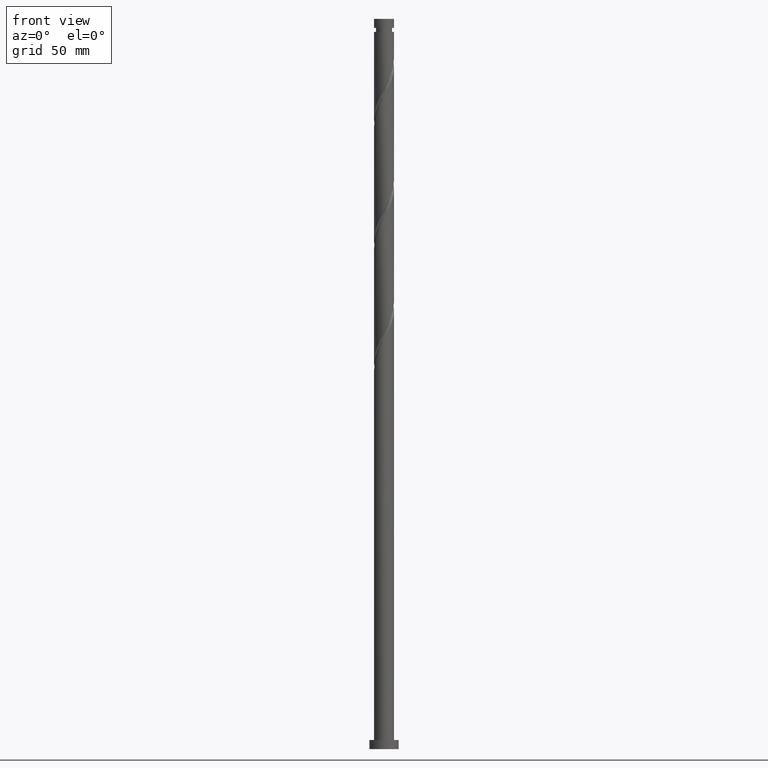
[diagram: clean part render]
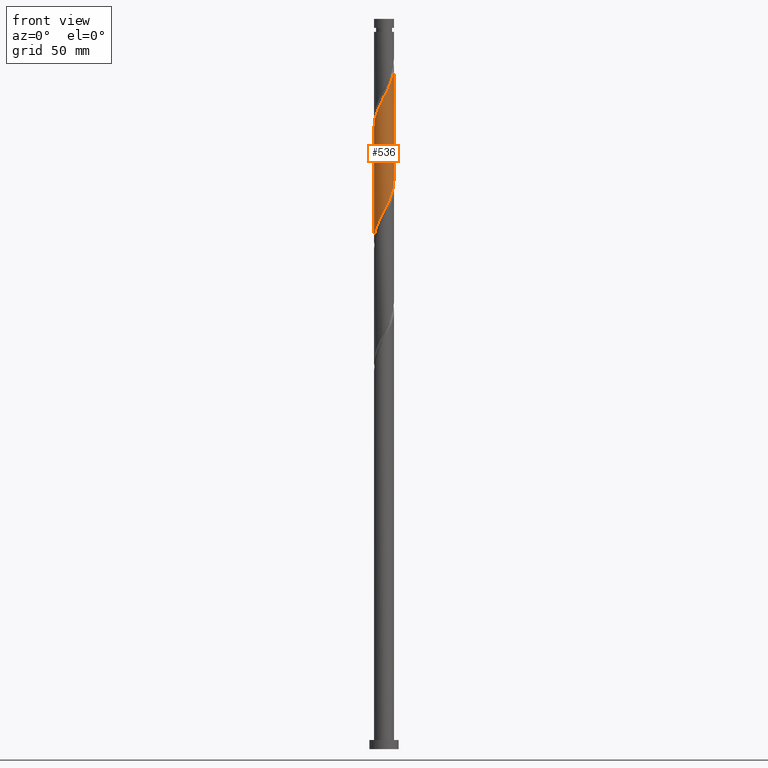
[diagram: same view with one face highlighted and labeled with its STEP entity id]
A machine part, front view. The second image highlights one B-rep face of the part: STEP entity #536.
In plain terms, the highlighted cylindrical surface (edge-blend (fillet) strip) has radius 5.5 mm, axis along (-0, -0, -1).
Its self-contained STEP definition (entity closure, byte-faithful):
#7 = CARTESIAN_POINT ( 'NONE',  ( -0.6281243161452685353, -5.494508947727569037, 356.1803760664136576 ) ) ;
#29 = CARTESIAN_POINT ( 'NONE',  ( 0.6281243161452659818, -5.494508947727561932, 296.1803760664137712 ) ) ;
#33 = DIRECTION ( 'NONE',  ( -1.000000000000000000, 0.000000000000000000, 0.000000000000000000 ) ) ;
#41 = CARTESIAN_POINT ( 'NONE',  ( -3.737754574404964725, -4.075948904820328345, 349.5137093997470856 ) ) ;
#51 = CARTESIAN_POINT ( 'NONE',  ( -3.273196407501500538, -4.419975710105131128, 350.6248205108581715 ) ) ;
#53 = ORIENTED_EDGE ( 'NONE', *, *, #1800, .F. ) ;
#132 = VERTEX_POINT ( 'NONE', #191 ) ;
#146 = CARTESIAN_POINT ( 'NONE',  ( -5.246068057486485969, -1.651898888013443312, 343.9581538441914290 ) ) ;
#149 = CARTESIAN_POINT ( 'NONE',  ( -5.500000000000000888, -7.623691864539277123E-15, 278.3058193099351456 ) ) ;
#159 = CARTESIAN_POINT ( 'NONE',  ( -5.215120016806765513, -1.747147163321219887, 281.7359316219693142 ) ) ;
#169 = CARTESIAN_POINT ( 'NONE',  ( 5.246068057486477976, -1.651898888013445976, 308.4025982886359429 ) ) ;
#174 = CARTESIAN_POINT ( 'NONE',  ( -0.05007498170499134760, -5.499772040385614957, 357.2914871775247434 ) ) ;
#178 = DIRECTION ( 'NONE',  ( -0.000000000000000000, -0.000000000000000000, -1.000000000000000000 ) ) ;
#183 = CARTESIAN_POINT ( 'NONE',  ( -5.500000000000001776, -0.3133555559553823922, 278.9114106193197813 ) ) ;
#186 = CARTESIAN_POINT ( 'NONE',  ( 5.398752583304248454, -1.199015962136031455, 371.7359316219692573 ) ) ;
#191 = CARTESIAN_POINT ( 'NONE',  ( 5.500000000000007994, -6.577302785092662656E-16, 374.0549328228921695 ) ) ;
#202 = CARTESIAN_POINT ( 'NONE',  ( 4.787979792849804461, -2.706519813942242170, 306.1803760664136576 ) ) ;
#240 = AXIS2_PLACEMENT_3D ( 'NONE', #638, #1424, #33 ) ;
#257 = CARTESIAN_POINT ( 'NONE',  ( 2.191213045310457908, -5.044659095524825609, 361.7359316219692573 ) ) ;
#315 = CARTESIAN_POINT ( 'NONE',  ( 3.273196407501492100, -4.419975710105127575, 301.7359316219691436 ) ) ;
#351 = CARTESIAN_POINT ( 'NONE',  ( -5.419689626847361552, -1.100514916679633082, 342.8470427330803432 ) ) ;
#353 = CARTESIAN_POINT ( 'NONE',  ( 5.419689626847354447, -1.100514916679634414, 309.5137093997470856 ) ) ;
#355 = CARTESIAN_POINT ( 'NONE',  ( 5.215120016806774395, -1.747147163321227881, 370.6248205108581715 ) ) ;
#377 = ORIENTED_EDGE ( 'NONE', *, *, #513, .T. ) ;
#386 = VERTEX_POINT ( 'NONE', #1458 ) ;
#403 =( BOUNDED_CURVE ( )  B_SPLINE_CURVE ( 2, ( #1384, #486, #1739, #351, #146, #619, #956, #1228, #554, #41, #51, #1173, #657, #669, #1274, #7, #174, #800, #1614, #886, #257, #741, #991, #1476, #1708, #947, #810, #1699, #355, #186, #1588, #828, #524 ),
 .UNSPECIFIED., .F., .T. ) 
 B_SPLINE_CURVE_WITH_KNOTS ( ( 3, 2, 2, 2, 2, 2, 2, 2, 2, 2, 2, 2, 2, 2, 2, 2, 3 ),
 ( 0.5545286012773112949, 0.5583333333333333481, 0.5666666666666666519, 0.5749999999999999556, 0.5833333333333332593, 0.5916666666666666741, 0.5999999999999999778, 0.6083333333333333925, 0.6166666666666666963, 0.6250000000000000000, 0.6333333333333333037, 0.6416666666666666075, 0.6500000000000000222, 0.6583333333333333259, 0.6666666666666667407, 0.6750000000000000444, 0.6795286012773115170 ),
 .UNSPECIFIED. ) 
 CURVE ( )  GEOMETRIC_REPRESENTATION_ITEM ( )  RATIONAL_B_SPLINE_CURVE ( ( 0.9066196499552308108, 0.9068171577856434240, 0.9090909090909424783, 0.9041108139711906411, 0.9090909090909424783, 0.9041108139711906411, 0.9090909090909424783, 0.9041108139711906411, 0.9090909090909424783, 0.9041108139711906411, 0.9090909090909424783, 0.9041108139711906411, 0.9090909090909424783, 0.9041108139711906411, 0.9090909090909424783, 0.9041108139711906411, 0.9090909090909424783, 0.9041108139711906411, 0.9090909090909424783, 0.9041108139711906411, 0.9090909090909424783, 0.9041108139711906411, 0.9090909090909424783, 0.9041108139711906411, 0.9090909090909424783, 0.9041108139711906411, 0.9090909090909424783, 0.9041108139711906411, 0.9090909090909424783, 0.9041108139711906411, 0.9090909090909424783, 0.9063845652764895844, 0.9066196499552308108 ) ) 
 REPRESENTATION_ITEM ( '' )  );
#468 = CARTESIAN_POINT ( 'NONE',  ( -5.031487450309294118, -2.295278364506418534, 282.8470427330804000 ) ) ;
#478 = CARTESIAN_POINT ( 'NONE',  ( 1.192447627240330821, -5.369177651772093718, 297.2914871775246866 ) ) ;
#480 = ORIENTED_EDGE ( 'NONE', *, *, #1456, .F. ) ;
#486 = CARTESIAN_POINT ( 'NONE',  ( -5.500000000000008882, -0.2631419960771098632, 341.2301480151228361 ) ) ;
#490 = CARTESIAN_POINT ( 'NONE',  ( -3.662918688511955789, -4.143331439136995975, 287.2914871775248002 ) ) ;
#513 = EDGE_CURVE ( 'NONE', #386, #1323, #792, .T. ) ;
#524 = CARTESIAN_POINT ( 'NONE',  ( 5.500000000000007994, -6.577302785092662656E-16, 374.0549328228921695 ) ) ;
#536 = ADVANCED_FACE ( 'NONE', ( #963 ), #1256, .T. ) ;
#554 = CARTESIAN_POINT ( 'NONE',  ( -4.120633835989488070, -3.642852836678781348, 348.4025982886358292 ) ) ;
#619 = CARTESIAN_POINT ( 'NONE',  ( -5.072446488125611275, -2.203282859347252653, 345.0692649553025717 ) ) ;
#622 = CARTESIAN_POINT ( 'NONE',  ( 5.500000000000000000, 5.202048566391506910E-15, 311.6391526432685168 ) ) ;
#638 = CARTESIAN_POINT ( 'NONE',  ( 0.000000000000000000, 0.000000000000000000, 400.0000000000000000 ) ) ;
#657 = CARTESIAN_POINT ( 'NONE',  ( -2.282704589466718836, -5.003924435603286369, 352.8470427330804000 ) ) ;
#669 = CARTESIAN_POINT ( 'NONE',  ( -1.756770938335404875, -5.243846355816634386, 353.9581538441914859 ) ) ;
#741 = CARTESIAN_POINT ( 'NONE',  ( 2.721428081721635195, -4.814353324093297637, 362.8470427330803432 ) ) ;
#745 = EDGE_LOOP ( 'NONE', ( #53, #1790, #377, #480 ) ) ;
#792 = LINE ( 'NONE', #1559, #1085 ) ;
#797 = CARTESIAN_POINT ( 'NONE',  ( 5.072446488125604169, -2.203282859347254874, 307.2914871775249139 ) ) ;
#800 = CARTESIAN_POINT ( 'NONE',  ( 0.5279743527352882548, -5.505035133043659989, 358.4025982886360566 ) ) ;
#808 = CARTESIAN_POINT ( 'NONE',  ( -5.500000000000000888, -7.623691864539277123E-15, 278.3058193099351456 ) ) ;
#810 = CARTESIAN_POINT ( 'NONE',  ( 4.737904811144821871, -2.793252226443370123, 368.4025982886359429 ) ) ;
#812 = LINE ( 'NONE', #1861, #1498 ) ;
#828 = CARTESIAN_POINT ( 'NONE',  ( 5.500000000000007105, -0.3133555559553783953, 373.4493415135076475 ) ) ;
#886 = CARTESIAN_POINT ( 'NONE',  ( 1.660998008899282175, -5.274964866956356246, 360.6248205108582283 ) ) ;
#921 = EDGE_CURVE ( 'NONE', #386, #132, #403, .T. ) ;
#947 = CARTESIAN_POINT ( 'NONE',  ( 4.444322171980340741, -3.291226088380315939, 367.2914871775247434 ) ) ;
#956 = CARTESIAN_POINT ( 'NONE',  ( -4.787979792849812455, -2.706519813942244834, 346.1803760664136576 ) ) ;
#958 = CARTESIAN_POINT ( 'NONE',  ( -4.737904811144815653, -2.793252226443360797, 283.9581538441914290 ) ) ;
#963 = FACE_OUTER_BOUND ( 'NONE', #745, .T. ) ;
#969 = CARTESIAN_POINT ( 'NONE',  ( 0.05007498170498684426, -5.499772040385605187, 295.0692649553025717 ) ) ;
#977 = CARTESIAN_POINT ( 'NONE',  ( -1.094486180817286769, -5.390000000000000568, 292.8470427330804000 ) ) ;
#991 = CARTESIAN_POINT ( 'NONE',  ( 3.192173385116794826, -4.478842381615150359, 363.9581538441914290 ) ) ;
#1085 = VECTOR ( 'NONE', #178, 1000.000000000000000 ) ;
#1093 = DIRECTION ( 'NONE',  ( -0.000000000000000000, -0.000000000000000000, -1.000000000000000000 ) ) ;
#1107 = CARTESIAN_POINT ( 'NONE',  ( 2.282704589466713507, -5.003924435603280152, 299.5137093997469151 ) ) ;
#1173 = CARTESIAN_POINT ( 'NONE',  ( -2.808638240598034130, -4.764002515389937464, 351.7359316219693142 ) ) ;
#1228 = CARTESIAN_POINT ( 'NONE',  ( -4.503513097574011859, -3.209756768537235683, 347.2914871775248571 ) ) ;
#1231 = CARTESIAN_POINT ( 'NONE',  ( -2.191213045310459240, -5.044659095524817616, 290.6248205108581146 ) ) ;
#1250 = CARTESIAN_POINT ( 'NONE',  ( 1.756770938335398213, -5.243846355816629945, 298.4025982886359429 ) ) ;
#1256 = CYLINDRICAL_SURFACE ( 'NONE', #240, 5.500000000000000000 ) ;
#1262 = CARTESIAN_POINT ( 'NONE',  ( 3.737754574404958507, -4.075948904820323904, 302.8470427330804569 ) ) ;
#1274 = CARTESIAN_POINT ( 'NONE',  ( -1.192447627240337038, -5.369177651772103488, 355.0692649553025717 ) ) ;
#1323 = VERTEX_POINT ( 'NONE', #149 ) ;
#1384 = CARTESIAN_POINT ( 'NONE',  ( -5.500000000000007994, 6.397921800044681190E-15, 340.7215994895588551 ) ) ;
#1387 = CARTESIAN_POINT ( 'NONE',  ( -3.192173385116793050, -4.478842381615140589, 288.4025982886358292 ) ) ;
#1395 = CARTESIAN_POINT ( 'NONE',  ( -5.464409452811949564, -0.6246833854196904845, 279.5137093997470288 ) ) ;
#1409 = CARTESIAN_POINT ( 'NONE',  ( 4.503513097574001200, -3.209756768537236127, 305.0692649553026854 ) ) ;
#1424 = DIRECTION ( 'NONE',  ( -0.000000000000000000, -0.000000000000000000, -1.000000000000000000 ) ) ;
#1425 = VERTEX_POINT ( 'NONE', #622 ) ;
#1456 = EDGE_CURVE ( 'NONE', #1425, #1323, #1924, .T. ) ;
#1458 = CARTESIAN_POINT ( 'NONE',  ( -5.500000000000007994, 6.397921800044680401E-15, 340.7215994895588551 ) ) ;
#1476 = CARTESIAN_POINT ( 'NONE',  ( 3.662918688511956677, -4.143331439137004857, 365.0692649553025717 ) ) ;
#1498 = VECTOR ( 'NONE', #1093, 1000.000000000000000 ) ;
#1542 = CARTESIAN_POINT ( 'NONE',  ( -1.660998008899283063, -5.274964866956348253, 291.7359316219693142 ) ) ;
#1559 = CARTESIAN_POINT ( 'NONE',  ( -5.500000000000000000, 0.000000000000000000, 400.0000000000000000 ) ) ;
#1567 = CARTESIAN_POINT ( 'NONE',  ( -5.398752583304239572, -1.199015962136023905, 280.6248205108581715 ) ) ;
#1586 = CARTESIAN_POINT ( 'NONE',  ( 5.500000000000000000, 5.202048566391506910E-15, 311.6391526432685168 ) ) ;
#1588 = CARTESIAN_POINT ( 'NONE',  ( 5.464409452811957557, -0.6246833854196932601, 372.8470427330803432 ) ) ;
#1614 = CARTESIAN_POINT ( 'NONE',  ( 1.094486180817286103, -5.390000000000008562, 359.5137093997470288 ) ) ;
#1697 = CARTESIAN_POINT ( 'NONE',  ( -0.5279743527352924737, -5.505035133043654660, 293.9581538441915995 ) ) ;
#1699 = CARTESIAN_POINT ( 'NONE',  ( 5.031487450309300336, -2.295278364506422975, 369.5137093997470288 ) ) ;
#1708 = CARTESIAN_POINT ( 'NONE',  ( 4.053620430246150264, -3.717278763758658844, 366.1803760664137144 ) ) ;
#1719 = CARTESIAN_POINT ( 'NONE',  ( -4.444322171980338965, -3.291226088380308834, 285.0692649553027422 ) ) ;
#1739 = CARTESIAN_POINT ( 'NONE',  ( -5.474877974583513662, -0.5250820539881364546, 341.7359316219692573 ) ) ;
#1742 = CARTESIAN_POINT ( 'NONE',  ( 5.500000000000002665, -0.2631419960771147482, 311.1306041177045358 ) ) ;
#1790 = ORIENTED_EDGE ( 'NONE', *, *, #921, .F. ) ;
#1800 = EDGE_CURVE ( 'NONE', #132, #1425, #812, .T. ) ;
#1861 = CARTESIAN_POINT ( 'NONE',  ( 5.500000000000000000, 6.735557395310441037E-16, 400.0000000000000000 ) ) ;
#1869 = CARTESIAN_POINT ( 'NONE',  ( 4.120633835989479188, -3.642852836678780015, 303.9581538441914290 ) ) ;
#1879 = CARTESIAN_POINT ( 'NONE',  ( -2.721428081721632530, -4.814353324093288755, 289.5137093997469719 ) ) ;
#1889 = CARTESIAN_POINT ( 'NONE',  ( 2.808638240598027025, -4.764002515389932135, 300.6248205108581715 ) ) ;
#1902 = CARTESIAN_POINT ( 'NONE',  ( 5.474877974583506557, -0.5250820539881405624, 310.6248205108582283 ) ) ;
#1924 =( BOUNDED_CURVE ( )  B_SPLINE_CURVE ( 2, ( #1586, #1742, #1902, #353, #169, #797, #202, #1409, #1869, #1262, #315, #1889, #1107, #1250, #478, #29, #969, #1697, #977, #1542, #1231, #1879, #1387, #490, #2012, #1719, #958, #468, #159, #1567, #1395, #183, #808 ),
 .UNSPECIFIED., .F., .T. ) 
 B_SPLINE_CURVE_WITH_KNOTS ( ( 3, 2, 2, 2, 2, 2, 2, 2, 2, 2, 2, 2, 2, 2, 2, 2, 3 ),
 ( 0.5545286012773112949, 0.5583333333333333481, 0.5666666666666666519, 0.5749999999999999556, 0.5833333333333333703, 0.5916666666666666741, 0.5999999999999999778, 0.6083333333333332815, 0.6166666666666666963, 0.6250000000000000000, 0.6333333333333333037, 0.6416666666666667185, 0.6500000000000000222, 0.6583333333333333259, 0.6666666666666666297, 0.6750000000000000444, 0.6795286012773114059 ),
 .UNSPECIFIED. ) 
 CURVE ( )  GEOMETRIC_REPRESENTATION_ITEM ( )  RATIONAL_B_SPLINE_CURVE ( ( 0.9066196499552243715, 0.9068171577856370957, 0.9090909090909361501, 0.9041108139711843128, 0.9090909090909361501, 0.9041108139711843128, 0.9090909090909361501, 0.9041108139711843128, 0.9090909090909361501, 0.9041108139711843128, 0.9090909090909361501, 0.9041108139711843128, 0.9090909090909361501, 0.9041108139711843128, 0.9090909090909361501, 0.9041108139711843128, 0.9090909090909361501, 0.9041108139711843128, 0.9090909090909361501, 0.9041108139711843128, 0.9090909090909361501, 0.9041108139711843128, 0.9090909090909361501, 0.9041108139711843128, 0.9090909090909361501, 0.9041108139711843128, 0.9090909090909361501, 0.9041108139711843128, 0.9090909090909361501, 0.9041108139711843128, 0.9090909090909361501, 0.9063845652764832561, 0.9066196499552243715 ) ) 
 REPRESENTATION_ITEM ( '' )  );
#2012 = CARTESIAN_POINT ( 'NONE',  ( -4.053620430246145823, -3.717278763758650406, 286.1803760664137144 ) ) ;